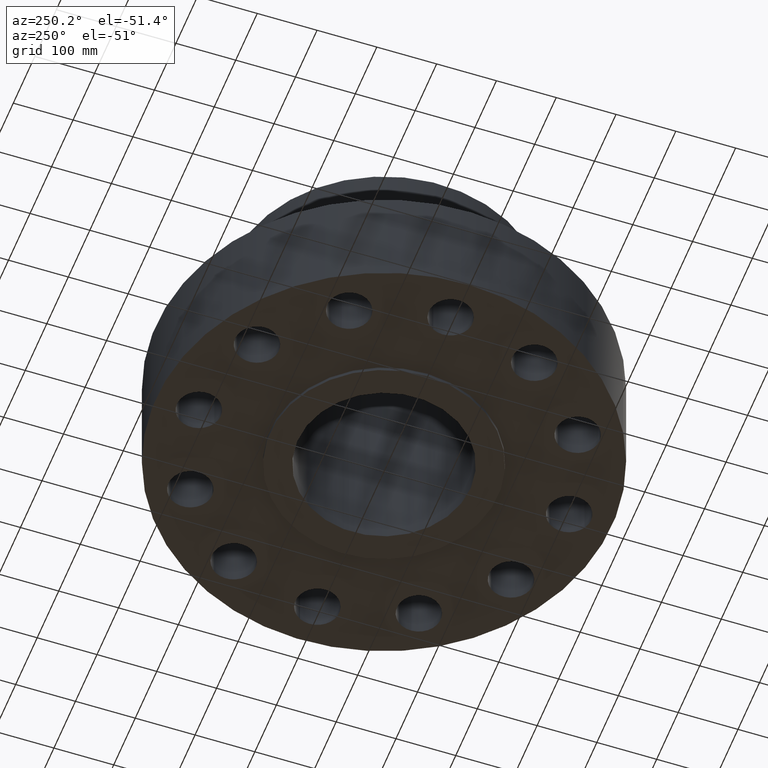
[diagram: clean part render]
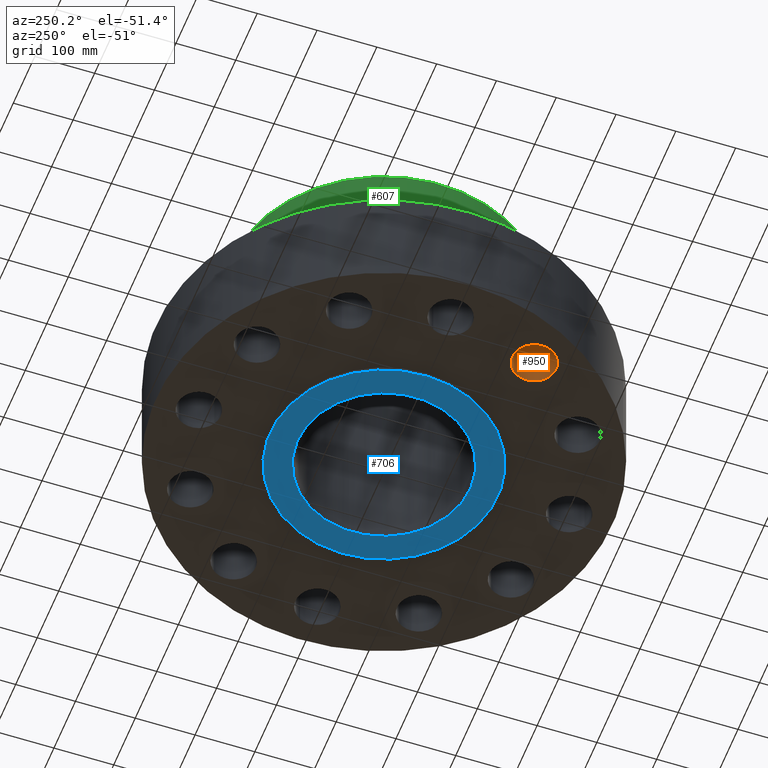
[diagram: same view with three faces highlighted in distinct colors, each labeled with its STEP entity id]
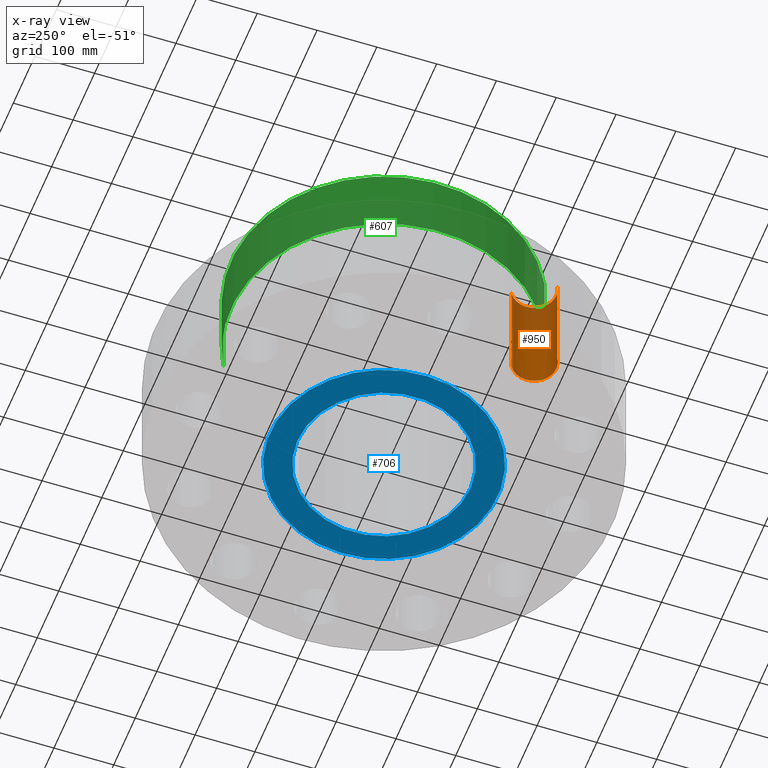
[diagram: x-ray of the same camera — body ghosted, the three highlighted faces saturated]
A machine part, auxiliary view with three faces highlighted in distinct colors.
The next image is the same camera in x-ray (body ghosted, the three faces saturated) — at least one of them is partly hidden behind the body in this view.
Their STEP definitions:

[orange] entity #950 — the highlighted cylindrical surface (edge-blend (fillet) strip) has radius 36.576 mm, axis along (0, 0, 1).
#208=AXIS2_PLACEMENT_3D('Circle Axis2P3D',#206,#207,$) ;
#911=AXIS2_PLACEMENT_3D('Cylinder Axis2P3D',#908,#909,#910) ;
#941=AXIS2_PLACEMENT_3D('Circle Axis2P3D',#939,#940,$) ;
#201=CARTESIAN_POINT('Vertex',(-11.3060759456,-7.32473980633,0.)) ;
#203=CARTESIAN_POINT('Vertex',(-9.80762339874,-4.86526019372,0.)) ;
#206=CARTESIAN_POINT('Axis2P3D Location',(-10.5568496722,-6.09500000002,0.)) ;
#908=CARTESIAN_POINT('Axis2P3D Location',(-10.5568496722,-6.09500000002,0.00393700787402)) ;
#913=CARTESIAN_POINT('Line Origine',(-9.80762339874,-4.86526019372,3.62500000001)) ;
#917=CARTESIAN_POINT('Vertex',(-9.80762339874,-4.86526019372,7.25000000003)) ;
#924=CARTESIAN_POINT('Vertex',(-11.3060759456,-7.32473980633,7.25000000003)) ;
#927=CARTESIAN_POINT('Line Origine',(-11.3060759456,-7.32473980633,3.62500000001)) ;
#939=CARTESIAN_POINT('Axis2P3D Location',(-10.5568496722,-6.09500000002,7.25000000003)) ;
#207=DIRECTION('Axis2P3D Direction',(0.,0.,-0.0393700787402)) ;
#909=DIRECTION('Axis2P3D Direction',(0.,0.,0.0393700787402)) ;
#910=DIRECTION('Axis2P3D XDirection',(-0.0204840954021,-0.0336214951417,0.)) ;
#914=DIRECTION('Vector Direction',(0.,0.,0.0393700787402)) ;
#928=DIRECTION('Vector Direction',(0.,0.,0.0393700787402)) ;
#940=DIRECTION('Axis2P3D Direction',(0.,0.,0.0393700787402)) ;
#915=VECTOR('Line Direction',#914,0.0393700787402) ;
#929=VECTOR('Line Direction',#928,0.0393700787402) ;
#945=ORIENTED_EDGE('',*,*,#931,.F.) ;
#946=ORIENTED_EDGE('',*,*,#943,.F.) ;
#947=ORIENTED_EDGE('',*,*,#919,.T.) ;
#948=ORIENTED_EDGE('',*,*,#210,.T.) ;
#950=ADVANCED_FACE('PartBody',(#949),#912,.F.) ;
#209=CIRCLE('generated circle',#208,1.44000000001) ;
#942=CIRCLE('generated circle',#941,1.44000000001) ;
#912=CYLINDRICAL_SURFACE('generated cylinder',#911,1.44000000001) ;
#210=EDGE_CURVE('',#204,#202,#209,.T.) ;
#919=EDGE_CURVE('',#918,#204,#916,.F.) ;
#931=EDGE_CURVE('',#925,#202,#930,.F.) ;
#943=EDGE_CURVE('',#918,#925,#942,.F.) ;
#944=EDGE_LOOP('',(#945,#946,#947,#948)) ;
#949=FACE_OUTER_BOUND('',#944,.T.) ;
#916=LINE('Line',#913,#915) ;
#930=LINE('Line',#927,#929) ;
#202=VERTEX_POINT('',#201) ;
#204=VERTEX_POINT('',#203) ;
#918=VERTEX_POINT('',#917) ;
#925=VERTEX_POINT('',#924) ;

[blue] entity #706 — the highlighted planar face has unit normal (0, 0, -1).
#650=AXIS2_PLACEMENT_3D('Circle Axis2P3D',#648,#649,$) ;
#669=AXIS2_PLACEMENT_3D('Circle Axis2P3D',#667,#668,$) ;
#682=AXIS2_PLACEMENT_3D('Plane Axis2P3D',#679,#680,#681) ;
#686=AXIS2_PLACEMENT_3D('Circle Axis2P3D',#684,#685,$) ;
#695=AXIS2_PLACEMENT_3D('Circle Axis2P3D',#693,#694,$) ;
#645=CARTESIAN_POINT('Vertex',(2.72793131467,4.99344477718,-0.250000000001)) ;
#648=CARTESIAN_POINT('Axis2P3D Location',(0.,0.,-0.250000000001)) ;
#652=CARTESIAN_POINT('Vertex',(-2.72793131467,-4.99344477718,-0.250000000001)) ;
#667=CARTESIAN_POINT('Axis2P3D Location',(0.,0.,-0.250000000001)) ;
#679=CARTESIAN_POINT('Axis2P3D Location',(0.,5.69000000002,-0.250000000001)) ;
#684=CARTESIAN_POINT('Axis2P3D Location',(0.,0.,-0.250000000001)) ;
#688=CARTESIAN_POINT('Vertex',(-3.59569153955,-6.5818692142,-0.250000000001)) ;
#690=CARTESIAN_POINT('Vertex',(3.59569153955,6.5818692142,-0.250000000001)) ;
#693=CARTESIAN_POINT('Axis2P3D Location',(0.,0.,-0.250000000001)) ;
#649=DIRECTION('Axis2P3D Direction',(0.,0.,-0.0393700787402)) ;
#668=DIRECTION('Axis2P3D Direction',(0.,0.,-0.0393700787402)) ;
#680=DIRECTION('Axis2P3D Direction',(0.,0.,-0.0393700787402)) ;
#681=DIRECTION('Axis2P3D XDirection',(0.0393700787402,0.,0.)) ;
#685=DIRECTION('Axis2P3D Direction',(0.,0.,-0.0393700787402)) ;
#694=DIRECTION('Axis2P3D Direction',(0.,0.,-0.0393700787402)) ;
#699=ORIENTED_EDGE('',*,*,#692,.T.) ;
#700=ORIENTED_EDGE('',*,*,#697,.T.) ;
#703=ORIENTED_EDGE('',*,*,#654,.F.) ;
#704=ORIENTED_EDGE('',*,*,#671,.F.) ;
#705=FACE_BOUND('',#702,.T.) ;
#706=ADVANCED_FACE('PartBody',(#701,#705),#683,.T.) ;
#651=CIRCLE('generated circle',#650,5.69000000002) ;
#670=CIRCLE('generated circle',#669,5.69000000002) ;
#687=CIRCLE('generated circle',#686,7.50000000003) ;
#696=CIRCLE('generated circle',#695,7.50000000003) ;
#654=EDGE_CURVE('',#646,#653,#651,.T.) ;
#671=EDGE_CURVE('',#653,#646,#670,.T.) ;
#692=EDGE_CURVE('',#689,#691,#687,.T.) ;
#697=EDGE_CURVE('',#691,#689,#696,.T.) ;
#698=EDGE_LOOP('',(#699,#700)) ;
#702=EDGE_LOOP('',(#703,#704)) ;
#701=FACE_OUTER_BOUND('',#698,.T.) ;
#683=PLANE('',#682) ;
#646=VERTEX_POINT('',#645) ;
#653=VERTEX_POINT('',#652) ;
#689=VERTEX_POINT('',#688) ;
#691=VERTEX_POINT('',#690) ;

[green] entity #607 — the highlighted cylindrical surface (partial cylindrical patch) has radius 255.524 mm, axis along (0, 0, -1).
#555=AXIS2_PLACEMENT_3D('Circle Axis2P3D',#553,#554,$) ;
#568=AXIS2_PLACEMENT_3D('Cylinder Axis2P3D',#565,#566,#567) ;
#598=AXIS2_PLACEMENT_3D('Circle Axis2P3D',#596,#597,$) ;
#531=CARTESIAN_POINT('Vertex',(4.82302091838,8.82848057265,11.0409698688)) ;
#538=CARTESIAN_POINT('Vertex',(-4.82302091838,-8.82848057265,11.0409698688)) ;
#553=CARTESIAN_POINT('Axis2P3D Location',(0.,0.,11.0409698688)) ;
#565=CARTESIAN_POINT('Axis2P3D Location',(0.,0.,7.75000000003)) ;
#570=CARTESIAN_POINT('Line Origine',(4.82302091838,8.82848057265,13.3954849344)) ;
#574=CARTESIAN_POINT('Vertex',(4.82302091838,8.82848057265,15.7500000001)) ;
#581=CARTESIAN_POINT('Vertex',(-4.82302091838,-8.82848057265,15.7500000001)) ;
#584=CARTESIAN_POINT('Line Origine',(-4.82302091838,-8.82848057265,13.3954849344)) ;
#596=CARTESIAN_POINT('Axis2P3D Location',(0.,0.,15.7500000001)) ;
#554=DIRECTION('Axis2P3D Direction',(-0.,0.,0.0393700787402)) ;
#566=DIRECTION('Axis2P3D Direction',(0.,0.,-0.0393700787402)) ;
#567=DIRECTION('Axis2P3D XDirection',(-0.0188750212049,-0.0345504945626,0.)) ;
#571=DIRECTION('Vector Direction',(0.,0.,-0.0393700787402)) ;
#585=DIRECTION('Vector Direction',(0.,0.,-0.0393700787402)) ;
#597=DIRECTION('Axis2P3D Direction',(0.,0.,-0.0393700787402)) ;
#572=VECTOR('Line Direction',#571,0.0393700787402) ;
#586=VECTOR('Line Direction',#585,0.0393700787402) ;
#602=ORIENTED_EDGE('',*,*,#557,.F.) ;
#603=ORIENTED_EDGE('',*,*,#588,.T.) ;
#604=ORIENTED_EDGE('',*,*,#600,.T.) ;
#605=ORIENTED_EDGE('',*,*,#576,.F.) ;
#607=ADVANCED_FACE('PartBody',(#606),#569,.T.) ;
#556=CIRCLE('generated circle',#555,10.06) ;
#599=CIRCLE('generated circle',#598,10.06) ;
#569=CYLINDRICAL_SURFACE('generated cylinder',#568,10.06) ;
#557=EDGE_CURVE('',#539,#532,#556,.F.) ;
#576=EDGE_CURVE('',#532,#575,#573,.F.) ;
#588=EDGE_CURVE('',#539,#582,#587,.F.) ;
#600=EDGE_CURVE('',#582,#575,#599,.T.) ;
#601=EDGE_LOOP('',(#602,#603,#604,#605)) ;
#606=FACE_OUTER_BOUND('',#601,.T.) ;
#573=LINE('Line',#570,#572) ;
#587=LINE('Line',#584,#586) ;
#532=VERTEX_POINT('',#531) ;
#539=VERTEX_POINT('',#538) ;
#575=VERTEX_POINT('',#574) ;
#582=VERTEX_POINT('',#581) ;